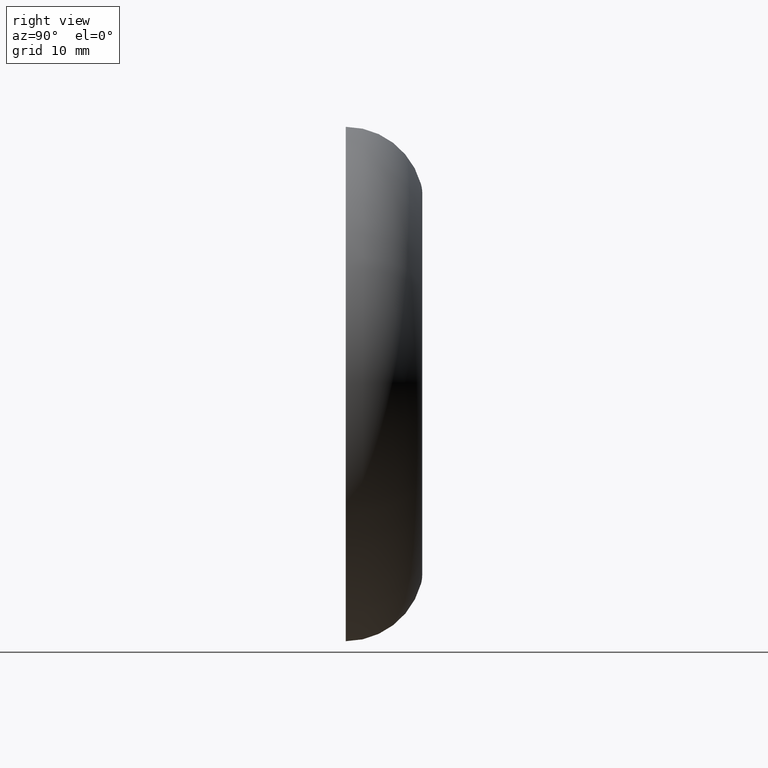
[diagram: clean part render]
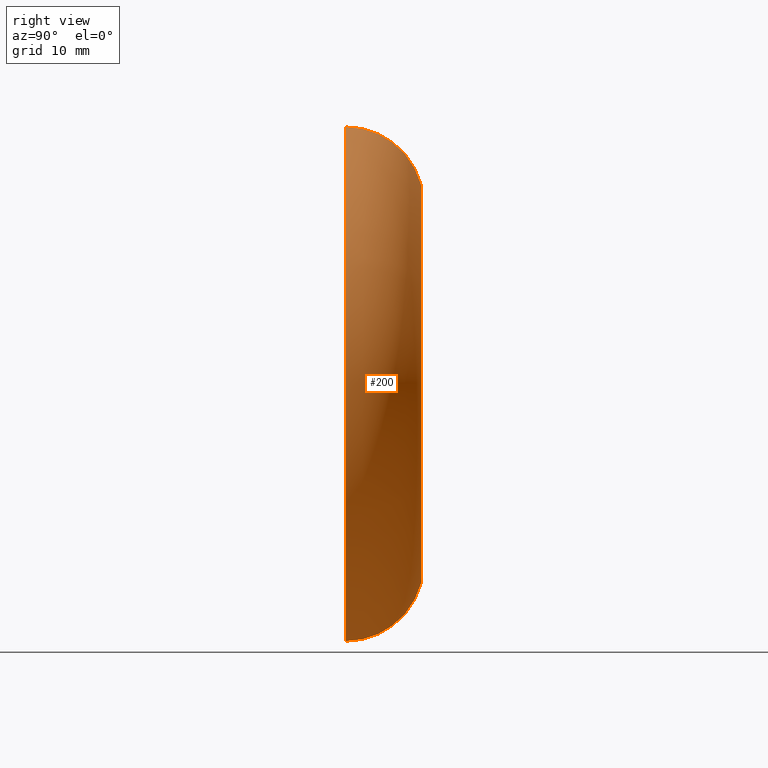
[diagram: same view with one face highlighted and labeled with its STEP entity id]
A machine part, right view. The second image highlights one B-rep face of the part: STEP entity #200.
In plain terms, the highlighted toroidal blend (fillet) surface has major radius 25.7778 mm and minor (blend) radius 11.2222 mm.
Its self-contained STEP definition (entity closure, byte-faithful):
#10 = CARTESIAN_POINT ( 'NONE',  ( 0.0000000000000000000, 0.0000000000000000000, 0.0000000000000000000 ) ) ;
#24 = CARTESIAN_POINT ( 'NONE',  ( 0.0000000000000000000, 0.0000000000000000000, -25.77777777777778200 ) ) ;
#54 = EDGE_CURVE ( 'NONE', #224, #320, #211, .T. ) ;
#56 = CARTESIAN_POINT ( 'NONE',  ( 0.0000000000000000000, 0.0000000000000000000, -37.00000000000000000 ) ) ;
#57 = VERTEX_POINT ( 'NONE', #56 ) ;
#61 = CARTESIAN_POINT ( 'NONE',  ( 4.531193156845207600E-015, 0.0000000000000000000, 37.00000000000000000 ) ) ;
#63 = VERTEX_POINT ( 'NONE', #61 ) ;
#67 = DIRECTION ( 'NONE',  ( -0.0000000000000000000, -1.000000000000000000, -0.0000000000000000000 ) ) ;
#76 = AXIS2_PLACEMENT_3D ( 'NONE', #270, #344, #153 ) ;
#79 = CARTESIAN_POINT ( 'NONE',  ( 4.026035111142166800E-015, 10.82142857142874900, 28.75014304443123000 ) ) ;
#98 = EDGE_CURVE ( 'NONE', #320, #63, #177, .T. ) ;
#128 = CARTESIAN_POINT ( 'NONE',  ( 0.0000000000000000000, 0.0000000000000000000, 0.0000000000000000000 ) ) ;
#141 = ORIENTED_EDGE ( 'NONE', *, *, #54, .T. ) ;
#142 = DIRECTION ( 'NONE',  ( -1.000000000000000000, 0.0000000000000000000, 0.0000000000000000000 ) ) ;
#143 = EDGE_CURVE ( 'NONE', #57, #63, #151, .T. ) ;
#149 = AXIS2_PLACEMENT_3D ( 'NONE', #215, #245, #401 ) ;
#151 = CIRCLE ( 'NONE', #351, 37.00000000000000000 ) ;
#153 = DIRECTION ( 'NONE',  ( 0.0000000000000000000, 0.0000000000000000000, -1.000000000000000000 ) ) ;
#157 = ORIENTED_EDGE ( 'NONE', *, *, #98, .T. ) ;
#175 = EDGE_LOOP ( 'NONE', ( #141, #157, #313, #360 ) ) ;
#177 = CIRCLE ( 'NONE', #149, 11.22222222222221800 ) ;
#192 = CARTESIAN_POINT ( 'NONE',  ( 0.0000000000000000000, 10.82142857142874900, -28.75014304443123000 ) ) ;
#194 = AXIS2_PLACEMENT_3D ( 'NONE', #128, #317, #384 ) ;
#197 = AXIS2_PLACEMENT_3D ( 'NONE', #24, #142, #392 ) ;
#200 = ADVANCED_FACE ( 'NONE', ( #379 ), #354, .T. ) ;
#211 = CIRCLE ( 'NONE', #76, 28.75014304443123000 ) ;
#215 = CARTESIAN_POINT ( 'NONE',  ( 3.156867304468733000E-015, 0.0000000000000000000, 25.77777777777778200 ) ) ;
#224 = VERTEX_POINT ( 'NONE', #192 ) ;
#245 = DIRECTION ( 'NONE',  ( 1.000000000000000000, 0.0000000000000000000, -1.224646799147353200E-016 ) ) ;
#270 = CARTESIAN_POINT ( 'NONE',  ( 0.0000000000000000000, 10.82142857142874900, 0.0000000000000000000 ) ) ;
#302 = EDGE_CURVE ( 'NONE', #224, #57, #306, .T. ) ;
#306 = CIRCLE ( 'NONE', #197, 11.22222222222221800 ) ;
#313 = ORIENTED_EDGE ( 'NONE', *, *, #143, .F. ) ;
#314 = DIRECTION ( 'NONE',  ( 0.0000000000000000000, 0.0000000000000000000, -1.000000000000000000 ) ) ;
#317 = DIRECTION ( 'NONE',  ( -0.0000000000000000000, -1.000000000000000000, -0.0000000000000000000 ) ) ;
#320 = VERTEX_POINT ( 'NONE', #79 ) ;
#344 = DIRECTION ( 'NONE',  ( -0.0000000000000000000, -1.000000000000000000, -0.0000000000000000000 ) ) ;
#351 = AXIS2_PLACEMENT_3D ( 'NONE', #10, #67, #314 ) ;
#354 = TOROIDAL_SURFACE ( 'NONE', #194, 25.77777777777778200, 11.22222222222221800 ) ;
#360 = ORIENTED_EDGE ( 'NONE', *, *, #302, .F. ) ;
#379 = FACE_OUTER_BOUND ( 'NONE', #175, .T. ) ;
#384 = DIRECTION ( 'NONE',  ( 0.0000000000000000000, 0.0000000000000000000, -1.000000000000000000 ) ) ;
#392 = DIRECTION ( 'NONE',  ( 0.0000000000000000000, 0.0000000000000000000, 1.000000000000000000 ) ) ;
#401 = DIRECTION ( 'NONE',  ( -1.224646799147353500E-016, 0.0000000000000000000, -1.000000000000000000 ) ) ;